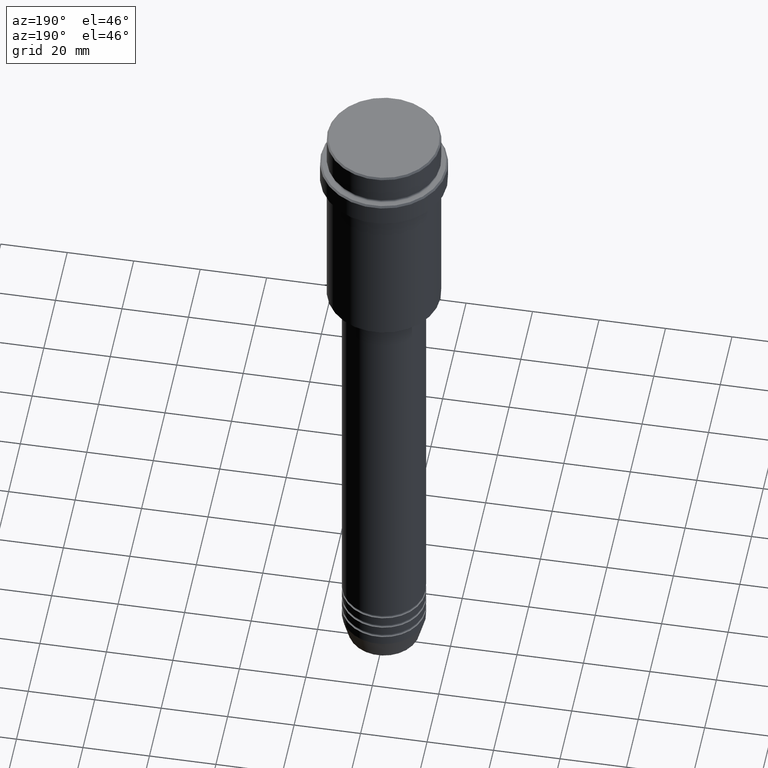
[diagram: clean part render]
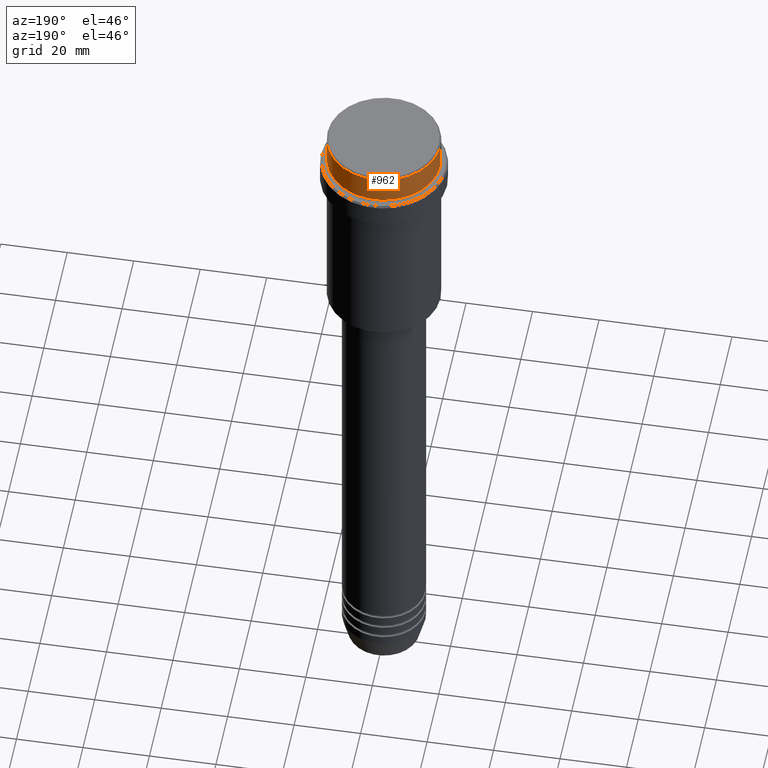
[diagram: same view with one face highlighted and labeled with its STEP entity id]
A machine part, auxiliary view. The second image highlights one B-rep face of the part: STEP entity #962.
In plain terms, the highlighted cylindrical surface (partial cylindrical patch) has radius 17 mm, axis along (-0, -0, 1).
Its self-contained STEP definition (entity closure, byte-faithful):
#40 = CIRCLE ( 'NONE', #790, 16.99999999999998579 ) ;
#86 = LINE ( 'NONE', #822, #291 ) ;
#116 = CIRCLE ( 'NONE', #1390, 16.99999999999997513 ) ;
#148 = VERTEX_POINT ( 'NONE', #462 ) ;
#240 = ORIENTED_EDGE ( 'NONE', *, *, #351, .T. ) ;
#291 = VECTOR ( 'NONE', #498, 1000.000000000000000 ) ;
#302 = FACE_OUTER_BOUND ( 'NONE', #581, .T. ) ;
#327 = CARTESIAN_POINT ( 'NONE',  ( 0.000000000000000000, 0.000000000000000000, -0.5000000000000108802 ) ) ;
#351 = EDGE_CURVE ( 'NONE', #363, #463, #86, .T. ) ;
#363 = VERTEX_POINT ( 'NONE', #925 ) ;
#423 = EDGE_CURVE ( 'NONE', #463, #148, #40, .T. ) ;
#462 = CARTESIAN_POINT ( 'NONE',  ( 16.99999999999998579, 0.000000000000000000, -0.5000000000000108802 ) ) ;
#463 = VERTEX_POINT ( 'NONE', #1074 ) ;
#498 = DIRECTION ( 'NONE',  ( -0.000000000000000000, -0.000000000000000000, 1.000000000000000000 ) ) ;
#512 = DIRECTION ( 'NONE',  ( -0.000000000000000000, -0.000000000000000000, 1.000000000000000000 ) ) ;
#515 = CARTESIAN_POINT ( 'NONE',  ( 0.000000000000000000, 0.000000000000000000, -8.999999999999998224 ) ) ;
#549 = DIRECTION ( 'NONE',  ( 1.000000000000000000, 0.000000000000000000, 0.000000000000000000 ) ) ;
#551 = DIRECTION ( 'NONE',  ( 1.000000000000000000, 0.000000000000000000, 0.000000000000000000 ) ) ;
#561 = DIRECTION ( 'NONE',  ( -0.000000000000000000, -0.000000000000000000, 1.000000000000000000 ) ) ;
#567 = DIRECTION ( 'NONE',  ( 0.000000000000000000, 0.000000000000000000, -1.000000000000000000 ) ) ;
#581 = EDGE_LOOP ( 'NONE', ( #1263, #240, #611, #1127 ) ) ;
#611 = ORIENTED_EDGE ( 'NONE', *, *, #423, .T. ) ;
#615 = CARTESIAN_POINT ( 'NONE',  ( 16.99999999999998579, 0.000000000000000000, 0.000000000000000000 ) ) ;
#745 = EDGE_CURVE ( 'NONE', #918, #148, #1279, .T. ) ;
#783 = CARTESIAN_POINT ( 'NONE',  ( 0.000000000000000000, 0.000000000000000000, 0.000000000000000000 ) ) ;
#790 = AXIS2_PLACEMENT_3D ( 'NONE', #327, #567, #549 ) ;
#822 = CARTESIAN_POINT ( 'NONE',  ( -16.99999999999998579, 2.081899558550499096E-15, 0.000000000000000000 ) ) ;
#842 = DIRECTION ( 'NONE',  ( -0.000000000000000000, -0.000000000000000000, 1.000000000000000000 ) ) ;
#918 = VERTEX_POINT ( 'NONE', #963 ) ;
#925 = CARTESIAN_POINT ( 'NONE',  ( -16.99999999999997513, 2.081899558550498307E-15, -8.999999999999998224 ) ) ;
#953 = EDGE_CURVE ( 'NONE', #918, #363, #116, .T. ) ;
#962 = ADVANCED_FACE ( 'NONE', ( #302 ), #1008, .T. ) ;
#963 = CARTESIAN_POINT ( 'NONE',  ( 16.99999999999997513, 0.000000000000000000, -8.999999999999998224 ) ) ;
#1008 = CYLINDRICAL_SURFACE ( 'NONE', #1031, 16.99999999999998579 ) ;
#1031 = AXIS2_PLACEMENT_3D ( 'NONE', #783, #561, #551 ) ;
#1074 = CARTESIAN_POINT ( 'NONE',  ( -16.99999999999998579, 2.081899558550499096E-15, -0.5000000000000108802 ) ) ;
#1127 = ORIENTED_EDGE ( 'NONE', *, *, #745, .F. ) ;
#1263 = ORIENTED_EDGE ( 'NONE', *, *, #953, .T. ) ;
#1279 = LINE ( 'NONE', #615, #1388 ) ;
#1288 = DIRECTION ( 'NONE',  ( 1.000000000000000000, 0.000000000000000000, 0.000000000000000000 ) ) ;
#1388 = VECTOR ( 'NONE', #512, 1000.000000000000000 ) ;
#1390 = AXIS2_PLACEMENT_3D ( 'NONE', #515, #842, #1288 ) ;